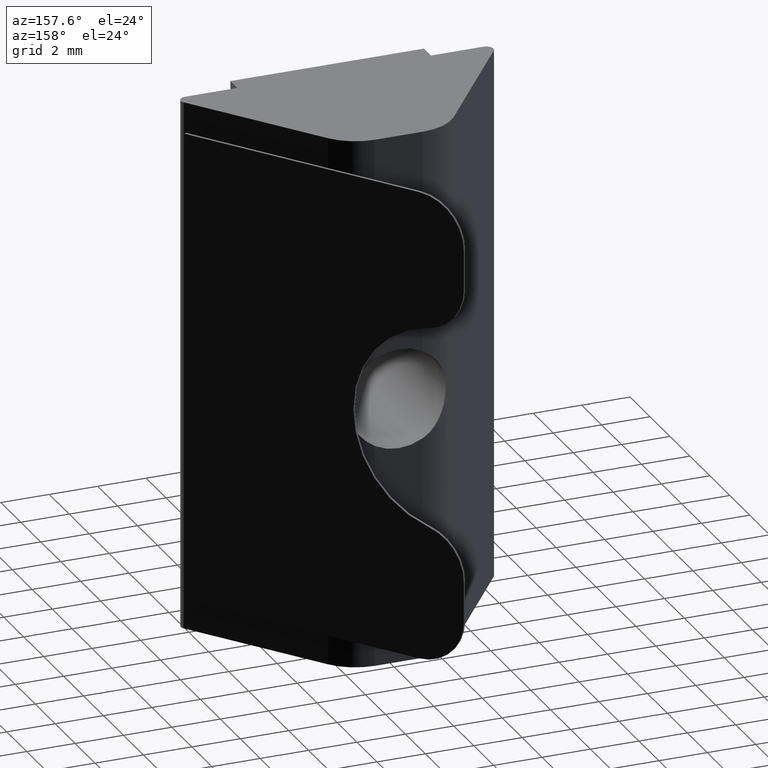
[diagram: clean part render]
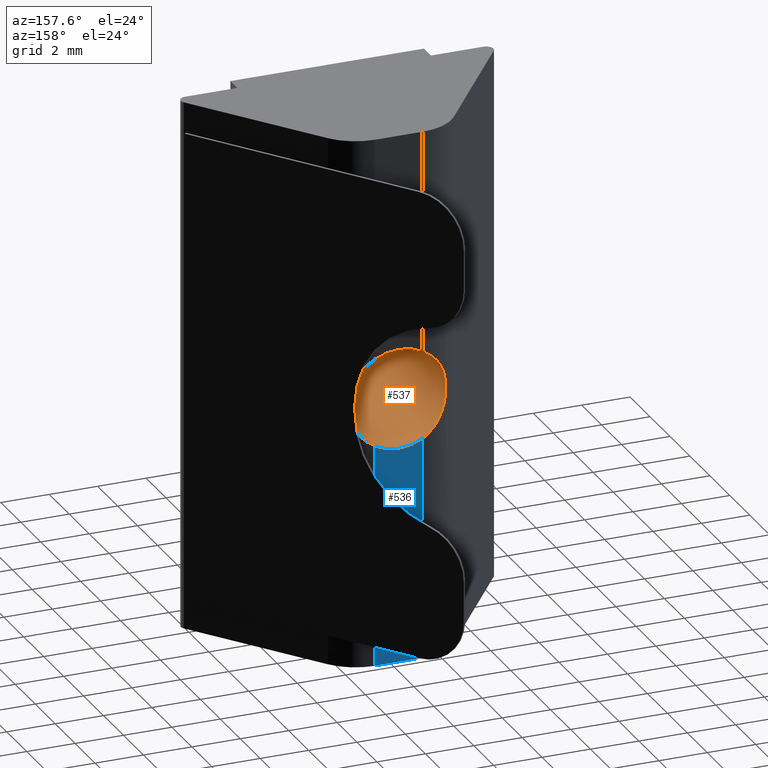
[diagram: same view with the hole feature highlighted: cylindrical wall and planar end face, labeled with their STEP entity ids]
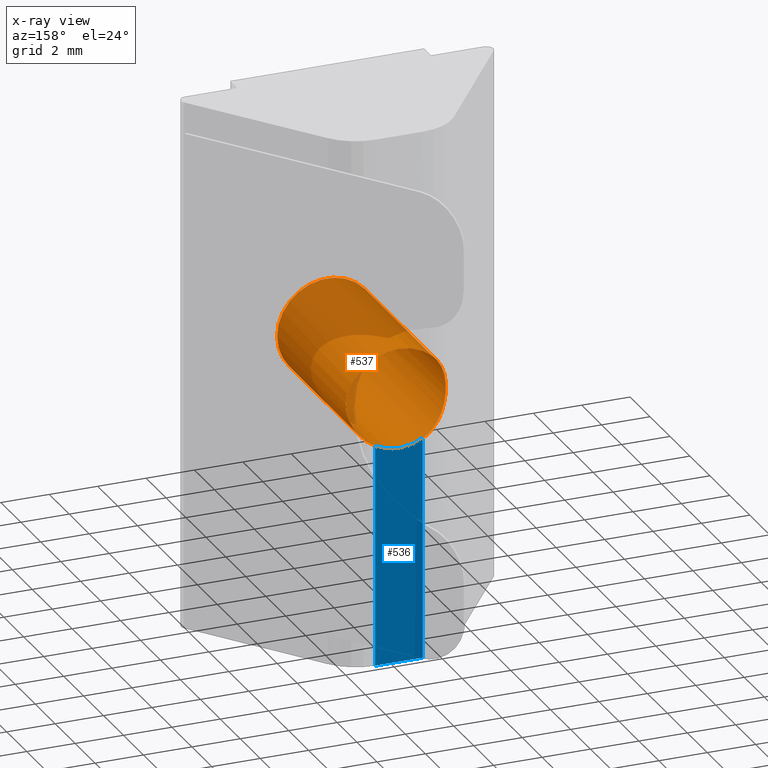
[diagram: x-ray of the same camera — body ghosted, the hole faces saturated]
A machine part, auxiliary view. The highlighted faces form one hole feature of diameter 4.134 mm: the cylindrical wall (entity #537, orange) and its adjacent planar end face (entity #536, blue) — they share a circular edge in the B-rep.
The next image is the same camera in x-ray (body ghosted, the hole faces saturated) — the bore reads through the body.
Wall:
#15=FACE_BOUND('',#87,.T.);
#17=B_SPLINE_CURVE_WITH_KNOTS('',3,(#882,#883,#884,#885,#886,#887,#888,
#889,#890,#891,#892,#893,#894,#895,#896,#897,#898,#899,#900),
 .UNSPECIFIED.,.F.,.F.,(4,2,2,2,3,2,2,2,4),(1.86131742501699,1.8652302043375,
1.93290848191653,2.00436199081739,2.07581549971825,2.14726900861911,2.21872251751997,
2.286400795099,2.29031357441951),.UNSPECIFIED.);
#18=B_SPLINE_CURVE_WITH_KNOTS('',3,(#906,#907,#908,#909,#910,#911,#912,
#913,#914,#915,#916,#917,#918,#919,#920,#921,#922,#923),.UNSPECIFIED.,.F.,
 .F.,(4,2,2,2,2,2,2,2,4),(0.823409675157867,0.827322454478377,0.895000732057408,
0.966454240958267,1.03790774985913,1.10936125875998,1.18081476766084,1.24849304523987,
1.25240582456038),.UNSPECIFIED.);
#58=FACE_OUTER_BOUND('',#86,.T.);
#86=EDGE_LOOP('',(#476,#477,#478,#479));
#87=EDGE_LOOP('',(#480));
#221=CIRCLE('',#585,2.067);
#222=CIRCLE('',#587,2.067);
#223=CIRCLE('',#588,2.067);
#270=VERTEX_POINT('',#879);
#271=VERTEX_POINT('',#881);
#272=VERTEX_POINT('',#903);
#273=VERTEX_POINT('',#905);
#274=VERTEX_POINT('',#929);
#340=EDGE_CURVE('',#270,#271,#17,.T.);
#343=EDGE_CURVE('',#272,#273,#18,.T.);
#345=EDGE_CURVE('',#271,#272,#221,.T.);
#346=EDGE_CURVE('',#273,#270,#222,.T.);
#347=EDGE_CURVE('',#274,#274,#223,.T.);
#476=ORIENTED_EDGE('',*,*,#340,.F.);
#477=ORIENTED_EDGE('',*,*,#346,.F.);
#478=ORIENTED_EDGE('',*,*,#343,.F.);
#479=ORIENTED_EDGE('',*,*,#345,.F.);
#480=ORIENTED_EDGE('',*,*,#347,.F.);
#515=CYLINDRICAL_SURFACE('',#586,2.067);
#537=ADVANCED_FACE('',(#58,#15),#515,.F.);
#585=AXIS2_PLACEMENT_3D('',#926,#725,#726);
#586=AXIS2_PLACEMENT_3D('',#927,#727,#728);
#587=AXIS2_PLACEMENT_3D('',#928,#729,#730);
#588=AXIS2_PLACEMENT_3D('',#930,#731,#732);
#725=DIRECTION('center_axis',(0.,-1.,0.));
#726=DIRECTION('ref_axis',(1.,0.,0.));
#727=DIRECTION('center_axis',(0.,-1.,0.));
#728=DIRECTION('ref_axis',(1.,0.,0.));
#729=DIRECTION('center_axis',(0.,-1.,0.));
#730=DIRECTION('ref_axis',(1.,0.,0.));
#731=DIRECTION('center_axis',(0.,1.,0.));
#732=DIRECTION('ref_axis',(1.,0.,0.));
#879=CARTESIAN_POINT('',(-0.984424278753134,6.5,12.8175251963594));
#881=CARTESIAN_POINT('',(-0.984424278753134,6.5,9.18247480364057));
#882=CARTESIAN_POINT('Ctrl Pts',(-0.984424278753134,6.5,12.8175251963594));
#883=CARTESIAN_POINT('Ctrl Pts',(-0.996020297091587,6.5,12.8112444570266));
#884=CARTESIAN_POINT('Ctrl Pts',(-1.00749567100125,6.49989912242261,12.8048854656537));
#885=CARTESIAN_POINT('Ctrl Pts',(-1.21510578086432,6.49632580636784,12.6872724438622));
#886=CARTESIAN_POINT('Ctrl Pts',(-1.42167327662954,6.45744658489841,12.5166738977715));
#887=CARTESIAN_POINT('Ctrl Pts',(-1.71856597584826,6.36719911563973,12.172007154397));
#888=CARTESIAN_POINT('Ctrl Pts',(-1.84922147788704,6.30608427881599,11.9564976737985));
#889=CARTESIAN_POINT('Ctrl Pts',(-2.02348529532173,6.21177357712414,11.4899110681427));
#890=CARTESIAN_POINT('Ctrl Pts',(-2.067,6.18167470331418,11.2381783630029));
#891=CARTESIAN_POINT('Ctrl Pts',(-2.067,6.18167470331418,11.));
#892=CARTESIAN_POINT('Ctrl Pts',(-2.067,6.18167470331418,10.7618216369971));
#893=CARTESIAN_POINT('Ctrl Pts',(-2.02348529532173,6.21177357712414,10.5100889318573));
#894=CARTESIAN_POINT('Ctrl Pts',(-1.84922147788704,6.30608427881599,10.0435023262015));
#895=CARTESIAN_POINT('Ctrl Pts',(-1.71856597584826,6.36719911563973,9.82799284560304));
#896=CARTESIAN_POINT('Ctrl Pts',(-1.42167327662954,6.45744658489841,9.4833261022285));
#897=CARTESIAN_POINT('Ctrl Pts',(-1.21510578086432,6.49632580636784,9.31272755613783));
#898=CARTESIAN_POINT('Ctrl Pts',(-1.00749567100125,6.49989912242261,9.19511453434627));
#899=CARTESIAN_POINT('Ctrl Pts',(-0.996020297091585,6.5,9.18875554297343));
#900=CARTESIAN_POINT('Ctrl Pts',(-0.984424278753131,6.5,9.18247480364057));
#903=CARTESIAN_POINT('',(0.984424278753135,6.5,9.18247480364057));
#905=CARTESIAN_POINT('',(0.984424278753135,6.5,12.8175251963594));
#906=CARTESIAN_POINT('Ctrl Pts',(0.984424278753135,6.5,9.18247480364057));
#907=CARTESIAN_POINT('Ctrl Pts',(0.996020297091588,6.5,9.18875554297344));
#908=CARTESIAN_POINT('Ctrl Pts',(1.00749567100125,6.49989912242261,9.19511453434627));
#909=CARTESIAN_POINT('Ctrl Pts',(1.21510578086432,6.49632580636784,9.31272755613783));
#910=CARTESIAN_POINT('Ctrl Pts',(1.42167327662954,6.45744658489841,9.4833261022285));
#911=CARTESIAN_POINT('Ctrl Pts',(1.71856597584826,6.36719911563973,9.82799284560304));
#912=CARTESIAN_POINT('Ctrl Pts',(1.84922147788704,6.30608427881599,10.0435023262015));
#913=CARTESIAN_POINT('Ctrl Pts',(2.02348529532173,6.21177357712414,10.5100889318573));
#914=CARTESIAN_POINT('Ctrl Pts',(2.067,6.18167470331418,10.7618216369971));
#915=CARTESIAN_POINT('Ctrl Pts',(2.067,6.18167470331418,11.2381783630029));
#916=CARTESIAN_POINT('Ctrl Pts',(2.02348529532173,6.21177357712414,11.4899110681427));
#917=CARTESIAN_POINT('Ctrl Pts',(1.84922147788704,6.30608427881599,11.9564976737985));
#918=CARTESIAN_POINT('Ctrl Pts',(1.71856597584826,6.36719911563973,12.172007154397));
#919=CARTESIAN_POINT('Ctrl Pts',(1.42167327662954,6.45744658489841,12.5166738977715));
#920=CARTESIAN_POINT('Ctrl Pts',(1.21510578086432,6.49632580636784,12.6872724438622));
#921=CARTESIAN_POINT('Ctrl Pts',(1.00749567100125,6.49989912242261,12.8048854656537));
#922=CARTESIAN_POINT('Ctrl Pts',(0.996020297091588,6.5,12.8112444570266));
#923=CARTESIAN_POINT('Ctrl Pts',(0.984424278753135,6.5,12.8175251963594));
#926=CARTESIAN_POINT('Origin',(0.,6.5,11.));
#927=CARTESIAN_POINT('Origin',(0.,26.0972013464093,11.));
#928=CARTESIAN_POINT('Origin',(0.,6.5,11.));
#929=CARTESIAN_POINT('',(2.067,-0.699999999999999,11.));
#930=CARTESIAN_POINT('Origin',(0.,-0.699999999999998,11.));
End face:
#30=PLANE('',#584);
#57=FACE_OUTER_BOUND('',#85,.T.);
#85=EDGE_LOOP('',(#472,#473,#474,#475));
#130=LINE('',#851,#184);
#142=LINE('',#901,#196);
#143=LINE('',#904,#197);
#184=VECTOR('',#690,1.96884855750627);
#196=VECTOR('',#718,9.18247480364057);
#197=VECTOR('',#721,9.18247480364057);
#221=CIRCLE('',#585,2.067);
#259=VERTEX_POINT('',#848);
#260=VERTEX_POINT('',#850);
#271=VERTEX_POINT('',#881);
#272=VERTEX_POINT('',#903);
#324=EDGE_CURVE('',#260,#259,#130,.T.);
#341=EDGE_CURVE('',#259,#271,#142,.T.);
#342=EDGE_CURVE('',#260,#272,#143,.T.);
#345=EDGE_CURVE('',#271,#272,#221,.T.);
#472=ORIENTED_EDGE('',*,*,#341,.T.);
#473=ORIENTED_EDGE('',*,*,#345,.T.);
#474=ORIENTED_EDGE('',*,*,#342,.F.);
#475=ORIENTED_EDGE('',*,*,#324,.T.);
#536=ADVANCED_FACE('',(#57),#30,.T.);
#584=AXIS2_PLACEMENT_3D('',#925,#723,#724);
#585=AXIS2_PLACEMENT_3D('',#926,#725,#726);
#690=DIRECTION('',(-1.,0.,0.));
#718=DIRECTION('',(0.,0.,1.));
#721=DIRECTION('',(0.,0.,1.));
#723=DIRECTION('center_axis',(0.,1.,0.));
#724=DIRECTION('ref_axis',(-1.,0.,0.));
#725=DIRECTION('center_axis',(0.,-1.,0.));
#726=DIRECTION('ref_axis',(1.,0.,0.));
#848=CARTESIAN_POINT('',(-0.984424278753134,6.5,0.));
#850=CARTESIAN_POINT('',(0.984424278753135,6.5,0.));
#851=CARTESIAN_POINT('',(2.,6.5,0.));
#881=CARTESIAN_POINT('',(-0.984424278753134,6.5,9.18247480364057));
#901=CARTESIAN_POINT('',(-0.984424278753134,6.5,0.));
#903=CARTESIAN_POINT('',(0.984424278753135,6.5,9.18247480364057));
#904=CARTESIAN_POINT('',(0.984424278753135,6.5,0.));
#925=CARTESIAN_POINT('Origin',(2.,6.5,0.));
#926=CARTESIAN_POINT('Origin',(0.,6.5,11.));